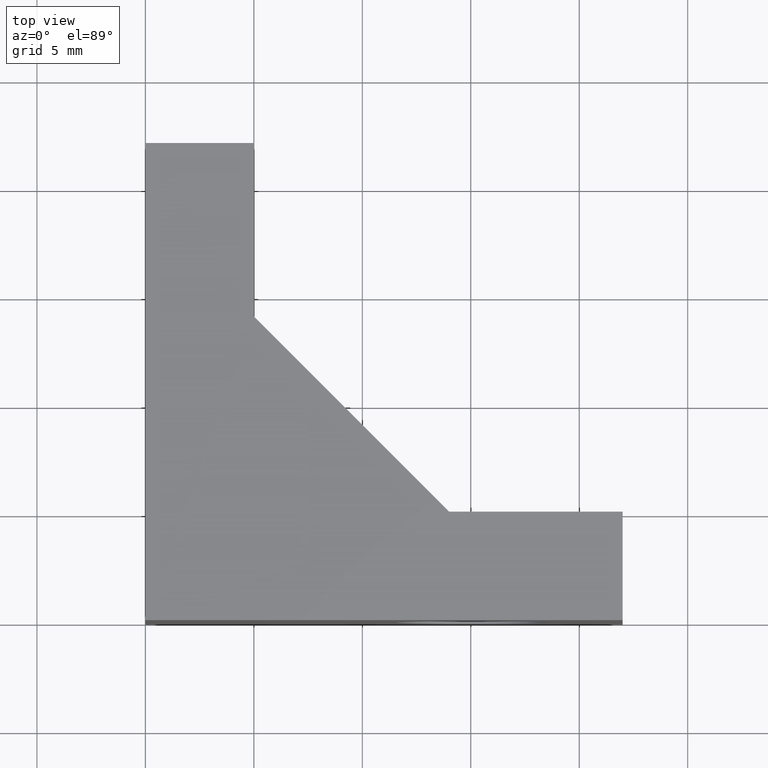
[diagram: clean part render]
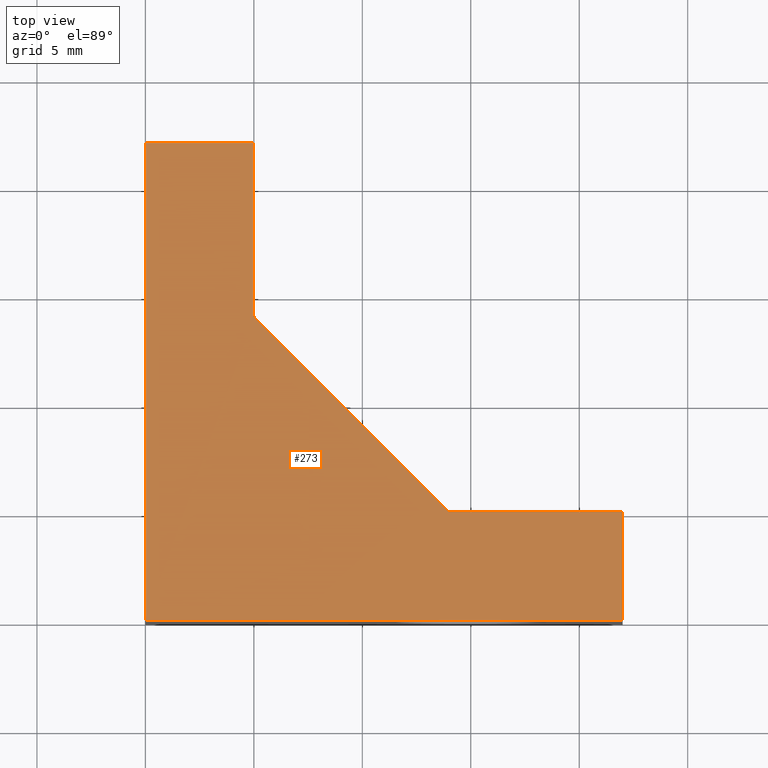
[diagram: same view with one face highlighted and labeled with its STEP entity id]
A machine part, top view. The second image highlights one B-rep face of the part: STEP entity #273.
In plain terms, the highlighted planar face has unit normal (0, 0, -1).
Its self-contained STEP definition (entity closure, byte-faithful):
#25=PLANE('',#314);
#39=FACE_OUTER_BOUND('',#57,.T.);
#57=EDGE_LOOP('',(#235,#236,#237,#238,#239,#240,#241));
#67=LINE('',#410,#99);
#71=LINE('',#417,#103);
#78=LINE('',#431,#110);
#83=LINE('',#442,#115);
#88=LINE('',#451,#120);
#90=LINE('',#454,#122);
#91=LINE('',#456,#123);
#99=VECTOR('',#340,1000.);
#103=VECTOR('',#346,1000.);
#110=VECTOR('',#355,1000.);
#115=VECTOR('',#362,1000.);
#120=VECTOR('',#369,1000.);
#122=VECTOR('',#373,1000.);
#123=VECTOR('',#376,1000.);
#137=VERTEX_POINT('',#407);
#138=VERTEX_POINT('',#409);
#140=VERTEX_POINT('',#415);
#146=VERTEX_POINT('',#429);
#150=VERTEX_POINT('',#439);
#151=VERTEX_POINT('',#441);
#154=VERTEX_POINT('',#449);
#163=EDGE_CURVE('',#138,#137,#67,.T.);
#167=EDGE_CURVE('',#137,#140,#71,.T.);
#174=EDGE_CURVE('',#140,#146,#78,.T.);
#179=EDGE_CURVE('',#151,#150,#83,.T.);
#184=EDGE_CURVE('',#150,#154,#88,.T.);
#186=EDGE_CURVE('',#154,#138,#90,.T.);
#187=EDGE_CURVE('',#151,#146,#91,.T.);
#235=ORIENTED_EDGE('',*,*,#174,.T.);
#236=ORIENTED_EDGE('',*,*,#187,.F.);
#237=ORIENTED_EDGE('',*,*,#179,.T.);
#238=ORIENTED_EDGE('',*,*,#184,.T.);
#239=ORIENTED_EDGE('',*,*,#186,.T.);
#240=ORIENTED_EDGE('',*,*,#163,.T.);
#241=ORIENTED_EDGE('',*,*,#167,.T.);
#273=ADVANCED_FACE('',(#39),#25,.F.);
#314=AXIS2_PLACEMENT_3D('',#455,#374,#375);
#340=DIRECTION('',(1.,-9.11086486901661E-17,0.));
#346=DIRECTION('',(0.,1.,0.));
#355=DIRECTION('',(-1.,-5.10212787052002E-17,0.));
#362=DIRECTION('',(-1.53063836115601E-16,1.,0.));
#369=DIRECTION('',(-1.,0.,0.));
#373=DIRECTION('',(0.,-1.,0.));
#374=DIRECTION('center_axis',(0.,0.,-1.));
#375=DIRECTION('ref_axis',(-1.,0.,0.));
#376=DIRECTION('',(0.707106781186547,-0.707106781186548,0.));
#407=CARTESIAN_POINT('',(22.,-2.00439027118366E-15,6.5));
#409=CARTESIAN_POINT('',(0.,0.,6.5));
#410=CARTESIAN_POINT('',(22.,-2.00439027118366E-15,6.5));
#415=CARTESIAN_POINT('',(22.,5.,6.5));
#417=CARTESIAN_POINT('',(22.,5.,6.5));
#429=CARTESIAN_POINT('',(14.,5.,6.5));
#431=CARTESIAN_POINT('',(5.,5.,6.5));
#439=CARTESIAN_POINT('',(5.,22.,6.5));
#441=CARTESIAN_POINT('',(5.,14.,6.5));
#442=CARTESIAN_POINT('',(5.,22.,6.5));
#449=CARTESIAN_POINT('',(0.,22.,6.5));
#451=CARTESIAN_POINT('',(0.,22.,6.5));
#454=CARTESIAN_POINT('',(0.,0.,6.5));
#455=CARTESIAN_POINT('Origin',(0.,0.,6.5));
#456=CARTESIAN_POINT('',(5.,14.,6.5));